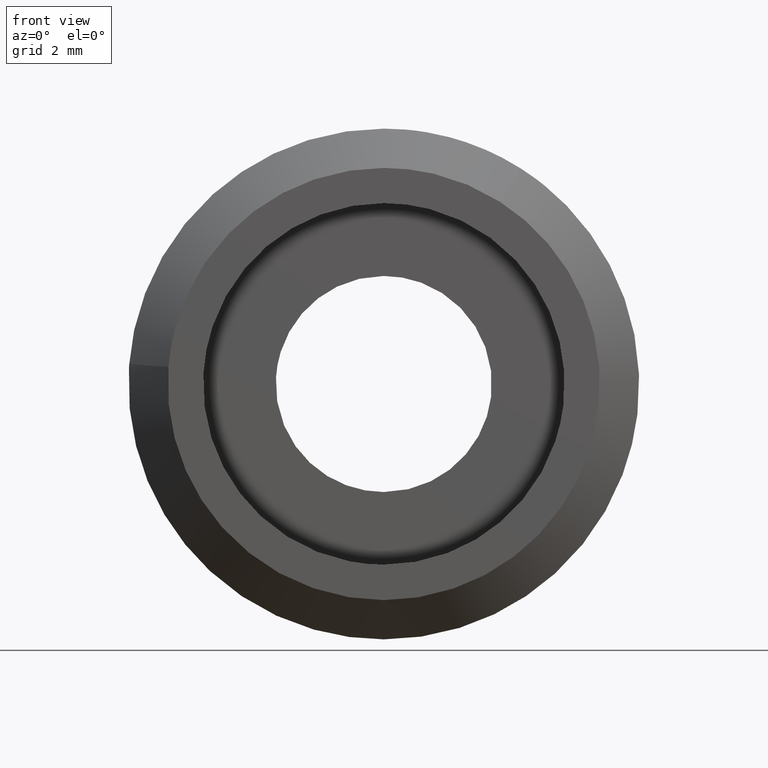
[diagram: clean part render]
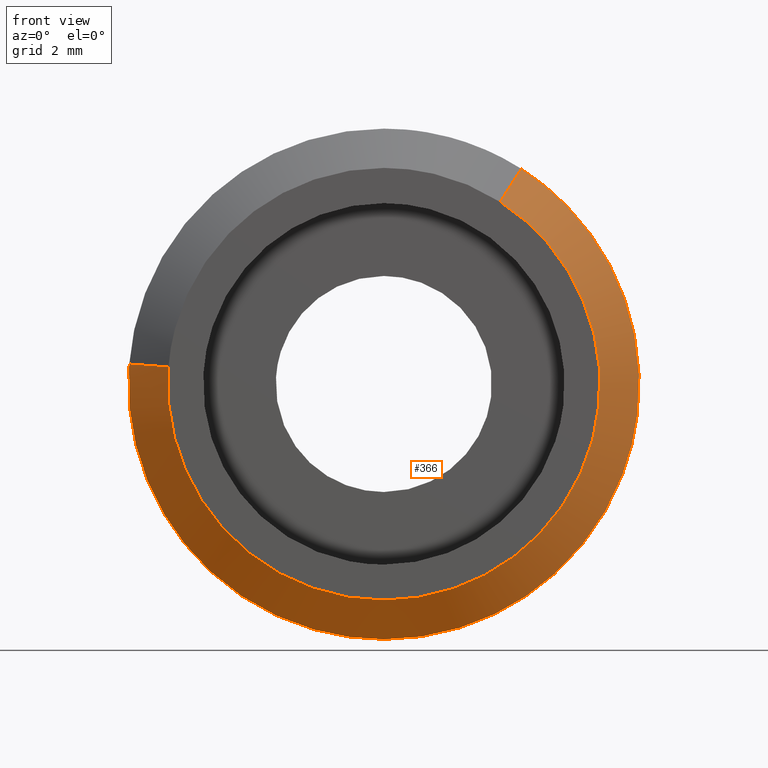
[diagram: same view with one face highlighted and labeled with its STEP entity id]
A machine part, front view. The second image highlights one B-rep face of the part: STEP entity #366.
In plain terms, the highlighted face is a freeform B-spline surface patch.
Its self-contained STEP definition (entity closure, byte-faithful):
#230=CARTESIAN_POINT('',(2.944733094117965,-2.025000000000000,4.615644267532583));
#231=CARTESIAN_POINT('',(5.716039175441344,-2.025000000000000,2.847579776729467));
#232=CARTESIAN_POINT('',(5.458122402188874,-2.025000000000000,-0.429563549109954));
#233=CARTESIAN_POINT('',(5.028558853078919,-2.025000000000000,-5.887685951298828));
#234=CARTESIAN_POINT('',(-0.429563549109954,-2.025000000000000,-5.458122402188873));
#235=CARTESIAN_POINT('',(-5.887685951298825,-2.025000000000000,-5.028558853078919));
#236=CARTESIAN_POINT('',(-5.458122402188872,-2.025000000000000,0.429563549109954));
#237=CARTESIAN_POINT('',(3.509812583982383,-0.974375000000000,5.501363218870742));
#238=CARTESIAN_POINT('',(6.812918382509483,-0.974375000000000,3.394016032971731));
#239=CARTESIAN_POINT('',(6.505508675942241,-0.974375000000000,-0.511994636559022));
#240=CARTESIAN_POINT('',(5.993514039383219,-0.974375000000000,-7.017503312501262));
#241=CARTESIAN_POINT('',(-0.511994636559021,-0.974375000000000,-6.505508675942240));
#242=CARTESIAN_POINT('',(-7.017503312501262,-0.974375000000000,-5.993514039383218));
#243=CARTESIAN_POINT('',(-6.505508675942239,-0.974375000000000,0.511994636559022));
#251=(BOUNDED_SURFACE()B_SPLINE_SURFACE(2,1,((#230,#237),(#231,#238),(#232,#239),(#233,#240),(#234,#241),(#235,#242),(#236,#243)),.UNSPECIFIED.,.F.,.F.,.U.)B_SPLINE_SURFACE_WITH_KNOTS((3,2,2,3),(2,2),(0.0,7.352166468053720,18.164175979897429,28.976185491741131),(0.0,1.0),.UNSPECIFIED.)GEOMETRIC_REPRESENTATION_ITEM()RATIONAL_B_SPLINE_SURFACE(((0.872532871172386,0.872532871172386),(0.800832611206852,0.800832611206852),(1.0,1.0),(0.707106781186548,0.707106781186548),(1.0,1.0),(0.707106781186548,0.707106781186548),(1.0,1.0)))REPRESENTATION_ITEM('')SURFACE());
#252=CARTESIAN_POINT('',(6.454562409925407,-0.999999999999979,-0.767218415029761));
#253=VERTEX_POINT('',#252);
#254=CARTESIAN_POINT('',(3.496030157401222,-0.999999999999946,5.479760317618087));
#255=VERTEX_POINT('',#254);
#256=CARTESIAN_POINT('',(6.454562409925407,-0.999999999999979,-0.767218415029761));
#257=CARTESIAN_POINT('',(6.500000000000002,-1.0,-0.384954700891566));
#258=CARTESIAN_POINT('',(6.500000000000001,-1.0,0.0));
#259=CARTESIAN_POINT('',(6.500000000000002,-1.0,3.563258764094281));
#260=CARTESIAN_POINT('',(3.496030157401222,-0.999999999999946,5.479760317618087));
#268=(BOUNDED_CURVE()B_SPLINE_CURVE(2,(#256,#257,#258,#259,#260),.UNSPECIFIED.,.F.,.U.)B_SPLINE_CURVE_WITH_KNOTS((3,2,3),(0.229562581136241,0.250000000000000,0.407950112627521),.UNSPECIFIED.)CURVE()GEOMETRIC_REPRESENTATION_ITEM()RATIONAL_B_SPLINE_CURVE((0.956026965128767,0.976056074419019,1.0,0.814949932402312,0.863729296954906))REPRESENTATION_ITEM(''));
#269=EDGE_CURVE('',#253,#255,#268,.T.);
#270=ORIENTED_EDGE('',*,*,#269,.T.);
#271=CARTESIAN_POINT('',(2.958179363957607,-1.999999999999788,4.636720268752224));
#272=VERTEX_POINT('',#271);
#273=CARTESIAN_POINT('',(2.958179363957607,-1.999999999999788,4.636720268752224));
#274=CARTESIAN_POINT('',(3.496030157401222,-0.999999999999946,5.479760317618087));
#275=QUASI_UNIFORM_CURVE('',1,(#273,#274),.UNSPECIFIED.,.F.,.U.);
#276=EDGE_CURVE('',#272,#255,#275,.T.);
#277=ORIENTED_EDGE('',*,*,#276,.F.);
#278=CARTESIAN_POINT('',(4.898425E-016,-2.0,-5.500000000000000));
#279=VERTEX_POINT('',#278);
#280=CARTESIAN_POINT('',(4.898425E-016,-2.0,-5.500000000000000));
#281=CARTESIAN_POINT('',(5.500000000000001,-2.000000000000000,-5.500000000000001));
#282=CARTESIAN_POINT('',(5.500000000000001,-2.0,0.0));
#283=CARTESIAN_POINT('',(5.500000000000000,-2.000000000000000,3.015065108075712));
#284=CARTESIAN_POINT('',(2.958179363957608,-1.999999999999788,4.636720268752226));
#292=(BOUNDED_CURVE()B_SPLINE_CURVE(2,(#280,#281,#282,#283,#284),.UNSPECIFIED.,.F.,.U.)B_SPLINE_CURVE_WITH_KNOTS((3,2,3),(0.0,0.250000000000000,0.407950112627348),.UNSPECIFIED.)CURVE()GEOMETRIC_REPRESENTATION_ITEM()RATIONAL_B_SPLINE_CURVE((1.0,0.707106781186548,1.0,0.814949932402515,0.863729296954799))REPRESENTATION_ITEM(''));
#293=EDGE_CURVE('',#279,#272,#292,.T.);
#294=ORIENTED_EDGE('',*,*,#293,.F.);
#295=CARTESIAN_POINT('',(-5.483045335532477,-1.999999999999305,0.431525026508502));
#296=VERTEX_POINT('',#295);
#297=CARTESIAN_POINT('',(-5.483045335532477,-1.999999999999305,0.431525026508502));
#298=CARTESIAN_POINT('',(-5.499999999999999,-2.000000000000000,0.216095588547506));
#299=CARTESIAN_POINT('',(-5.499999999999999,-2.0,0.0));
#300=CARTESIAN_POINT('',(-5.499999999999999,-2.000000000000000,-5.500000000000001));
#301=CARTESIAN_POINT('',(4.898425E-016,-2.0,-5.500000000000000));
#309=(BOUNDED_CURVE()B_SPLINE_CURVE(2,(#297,#298,#299,#300,#301),.UNSPECIFIED.,.F.,.U.)B_SPLINE_CURVE_WITH_KNOTS((3,2,3),(0.736331300632436,0.750000000000000,1.0),.UNSPECIFIED.)CURVE()GEOMETRIC_REPRESENTATION_ITEM()RATIONAL_B_SPLINE_CURVE((0.969723356171124,0.983986122580963,1.0,0.707106781186548,1.0))REPRESENTATION_ITEM(''));
#310=EDGE_CURVE('',#296,#279,#309,.T.);
#311=ORIENTED_EDGE('',*,*,#310,.F.);
#312=CARTESIAN_POINT('',(-6.479962669265479,-0.999999999999622,0.509984122233905));
#313=VERTEX_POINT('',#312);
#314=CARTESIAN_POINT('',(-5.483045335532477,-1.999999999999305,0.431525026508502));
#315=CARTESIAN_POINT('',(-6.479962669265479,-0.999999999999622,0.509984122233905));
#316=QUASI_UNIFORM_CURVE('',1,(#314,#315),.UNSPECIFIED.,.F.,.U.);
#317=EDGE_CURVE('',#296,#313,#316,.T.);
#318=ORIENTED_EDGE('',*,*,#317,.T.);
#319=CARTESIAN_POINT('',(-6.487876331741011,-0.999999999999986,0.396813185301808));
#320=VERTEX_POINT('',#319);
#321=CARTESIAN_POINT('',(-6.479962669265479,-0.999999999999622,0.509984122233905));
#322=CARTESIAN_POINT('',(-6.484413324530644,-1.0,0.453433185220409));
#323=CARTESIAN_POINT('',(-6.487876331741011,-0.999999999999986,0.396813185301808));
#331=(BOUNDED_CURVE()B_SPLINE_CURVE(2,(#321,#322,#323),.UNSPECIFIED.,.F.,.U.)B_SPLINE_CURVE_WITH_KNOTS((3,3),(0.736331300632614,0.739333023987528),.UNSPECIFIED.)CURVE()GEOMETRIC_REPRESENTATION_ITEM()RATIONAL_B_SPLINE_CURVE((0.969723356171498,0.972855539994323,0.976072174005725))REPRESENTATION_ITEM(''));
#332=EDGE_CURVE('',#313,#320,#331,.T.);
#333=ORIENTED_EDGE('',*,*,#332,.T.);
#334=CARTESIAN_POINT('',(4.898425E-016,-1.0,-6.500000000000000));
#335=VERTEX_POINT('',#334);
#336=CARTESIAN_POINT('',(-6.487876331741011,-0.999999999999986,0.396813185301808));
#337=CARTESIAN_POINT('',(-6.499999999999999,-1.0,0.198591797348603));
#338=CARTESIAN_POINT('',(-6.499999999999999,-1.0,0.0));
#339=CARTESIAN_POINT('',(-6.499999999999998,-1.0,-6.500000000000000));
#340=CARTESIAN_POINT('',(4.898425E-016,-1.0,-6.500000000000000));
#348=(BOUNDED_CURVE()B_SPLINE_CURVE(2,(#336,#337,#338,#339,#340),.UNSPECIFIED.,.F.,.U.)B_SPLINE_CURVE_WITH_KNOTS((3,2,3),(0.739333023987528,0.750000000000000,1.0),.UNSPECIFIED.)CURVE()GEOMETRIC_REPRESENTATION_ITEM()RATIONAL_B_SPLINE_CURVE((0.976072174005725,0.987502860242805,1.0,0.707106781186547,1.0))REPRESENTATION_ITEM(''));
#349=EDGE_CURVE('',#320,#335,#348,.T.);
#350=ORIENTED_EDGE('',*,*,#349,.T.);
#351=CARTESIAN_POINT('',(4.898425E-016,-1.0,-6.500000000000000));
#352=CARTESIAN_POINT('',(5.773138120873576,-1.0,-6.500000000000000));
#353=CARTESIAN_POINT('',(6.454562409925407,-0.999999999999979,-0.767218415029761));
#361=(BOUNDED_CURVE()B_SPLINE_CURVE(2,(#351,#352,#353),.UNSPECIFIED.,.F.,.U.)B_SPLINE_CURVE_WITH_KNOTS((3,3),(0.0,0.229562581136241),.UNSPECIFIED.)CURVE()GEOMETRIC_REPRESENTATION_ITEM()RATIONAL_B_SPLINE_CURVE((1.0,0.731050706767529,0.956026965128767))REPRESENTATION_ITEM(''));
#362=EDGE_CURVE('',#335,#253,#361,.T.);
#363=ORIENTED_EDGE('',*,*,#362,.T.);
#364=EDGE_LOOP('',(#270,#277,#294,#311,#318,#333,#350,#363));
#365=FACE_OUTER_BOUND('',#364,.T.);
#366=ADVANCED_FACE('',(#365),#251,.T.);